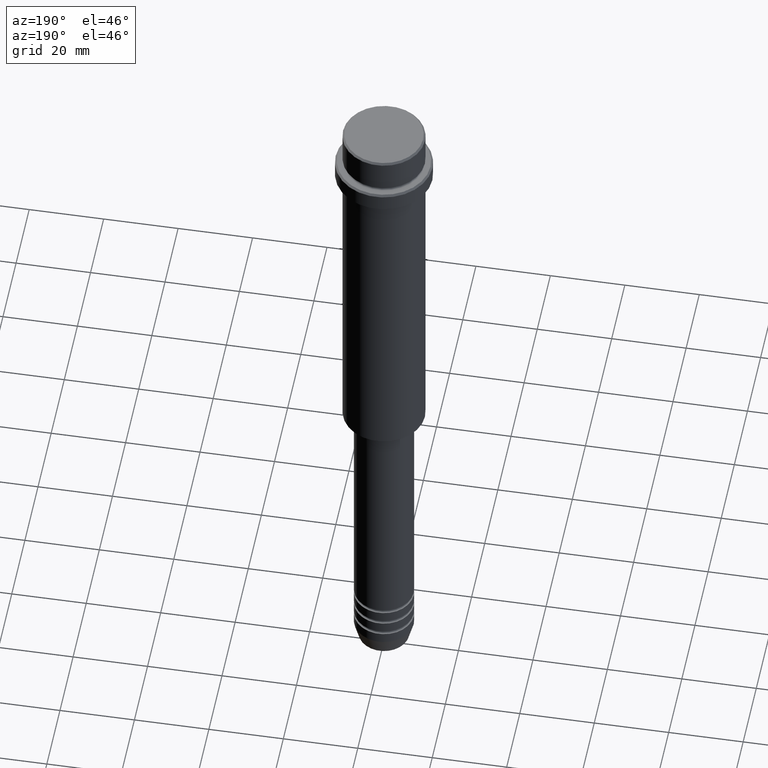
[diagram: clean part render]
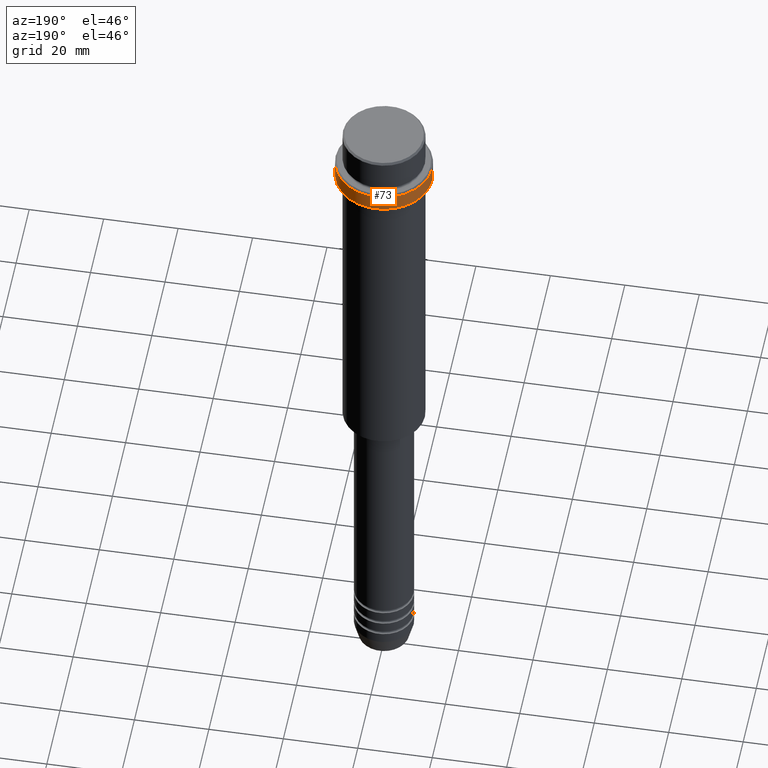
[diagram: same view with one face highlighted and labeled with its STEP entity id]
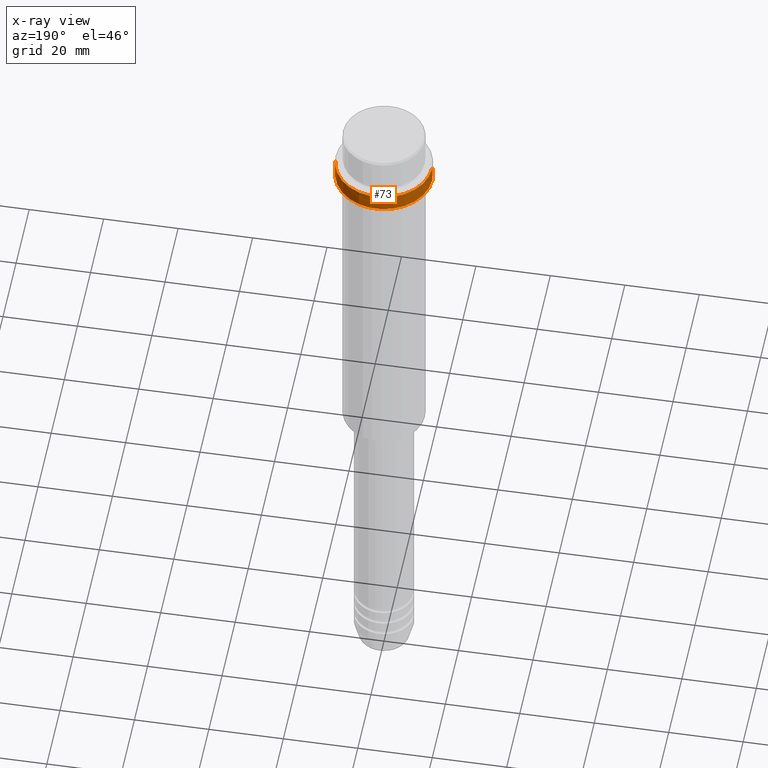
[diagram: x-ray of the same camera — body ghosted, the highlighted face saturated]
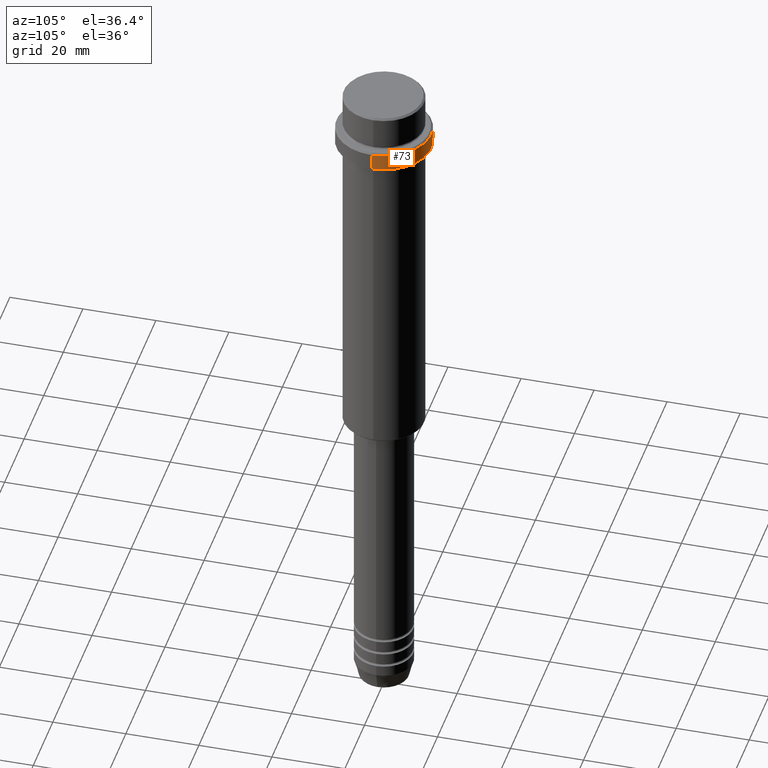
[diagram: same view with one face highlighted and labeled with its STEP entity id]
A machine part, auxiliary view. The second image highlights one B-rep face of the part: STEP entity #73.
The next image is the same camera in x-ray: the body ghosted, the highlighted face saturated — about 0% of this face is hidden behind the body in this view.
A second angle (auxiliary view) of the same face is appended — the face is thin or edge-on in the first view.
In plain terms, the highlighted cylindrical surface (partial cylindrical patch) has radius 13 mm, axis along (-0, -0, 1).
Its self-contained STEP definition (entity closure, byte-faithful):
#73 = ADVANCED_FACE ( 'NONE', ( #367 ), #255, .T. ) ;
#91 = ORIENTED_EDGE ( 'NONE', *, *, #1171, .T. ) ;
#105 = CIRCLE ( 'NONE', #918, 13.00000000000000000 ) ;
#163 = DIRECTION ( 'NONE',  ( -0.000000000000000000, -0.000000000000000000, 1.000000000000000000 ) ) ;
#170 = AXIS2_PLACEMENT_3D ( 'NONE', #330, #754, #440 ) ;
#225 = CARTESIAN_POINT ( 'NONE',  ( -13.00000000000000000, 1.592040838891559095E-15, 0.000000000000000000 ) ) ;
#255 = CYLINDRICAL_SURFACE ( 'NONE', #624, 13.00000000000000000 ) ;
#315 = CARTESIAN_POINT ( 'NONE',  ( -13.00000000000000000, 1.592040838891559095E-15, -10.50000000000000711 ) ) ;
#328 = CIRCLE ( 'NONE', #170, 13.00000000000000000 ) ;
#330 = CARTESIAN_POINT ( 'NONE',  ( 0.000000000000000000, 0.000000000000000000, -10.50000000000000711 ) ) ;
#361 = EDGE_CURVE ( 'NONE', #844, #496, #328, .T. ) ;
#367 = FACE_OUTER_BOUND ( 'NONE', #1091, .T. ) ;
#381 = CARTESIAN_POINT ( 'NONE',  ( 13.00000000000000000, 0.000000000000000000, -15.00000000000000178 ) ) ;
#389 = CARTESIAN_POINT ( 'NONE',  ( 0.000000000000000000, 0.000000000000000000, -15.00000000000000178 ) ) ;
#440 = DIRECTION ( 'NONE',  ( 1.000000000000000000, 0.000000000000000000, 0.000000000000000000 ) ) ;
#482 = CARTESIAN_POINT ( 'NONE',  ( 13.00000000000000000, 0.000000000000000000, -10.50000000000000711 ) ) ;
#496 = VERTEX_POINT ( 'NONE', #482 ) ;
#566 = DIRECTION ( 'NONE',  ( 1.000000000000000000, 0.000000000000000000, 0.000000000000000000 ) ) ;
#570 = EDGE_CURVE ( 'NONE', #620, #496, #1000, .T. ) ;
#620 = VERTEX_POINT ( 'NONE', #381 ) ;
#624 = AXIS2_PLACEMENT_3D ( 'NONE', #689, #674, #566 ) ;
#674 = DIRECTION ( 'NONE',  ( -0.000000000000000000, -0.000000000000000000, 1.000000000000000000 ) ) ;
#689 = CARTESIAN_POINT ( 'NONE',  ( 0.000000000000000000, 0.000000000000000000, 0.000000000000000000 ) ) ;
#754 = DIRECTION ( 'NONE',  ( 0.000000000000000000, 0.000000000000000000, -1.000000000000000000 ) ) ;
#815 = DIRECTION ( 'NONE',  ( -0.000000000000000000, -0.000000000000000000, 1.000000000000000000 ) ) ;
#844 = VERTEX_POINT ( 'NONE', #315 ) ;
#896 = VECTOR ( 'NONE', #1080, 1000.000000000000000 ) ;
#918 = AXIS2_PLACEMENT_3D ( 'NONE', #389, #815, #1025 ) ;
#936 = VECTOR ( 'NONE', #163, 1000.000000000000000 ) ;
#969 = ORIENTED_EDGE ( 'NONE', *, *, #361, .T. ) ;
#1000 = LINE ( 'NONE', #1135, #936 ) ;
#1025 = DIRECTION ( 'NONE',  ( 1.000000000000000000, 0.000000000000000000, 0.000000000000000000 ) ) ;
#1027 = VERTEX_POINT ( 'NONE', #1294 ) ;
#1059 = ORIENTED_EDGE ( 'NONE', *, *, #570, .F. ) ;
#1080 = DIRECTION ( 'NONE',  ( -0.000000000000000000, -0.000000000000000000, 1.000000000000000000 ) ) ;
#1091 = EDGE_LOOP ( 'NONE', ( #91, #1416, #969, #1059 ) ) ;
#1135 = CARTESIAN_POINT ( 'NONE',  ( 13.00000000000000000, 0.000000000000000000, 0.000000000000000000 ) ) ;
#1171 = EDGE_CURVE ( 'NONE', #620, #1027, #105, .T. ) ;
#1182 = LINE ( 'NONE', #225, #896 ) ;
#1294 = CARTESIAN_POINT ( 'NONE',  ( -13.00000000000000000, 1.592040838891559095E-15, -15.00000000000000178 ) ) ;
#1309 = EDGE_CURVE ( 'NONE', #1027, #844, #1182, .T. ) ;
#1416 = ORIENTED_EDGE ( 'NONE', *, *, #1309, .T. ) ;